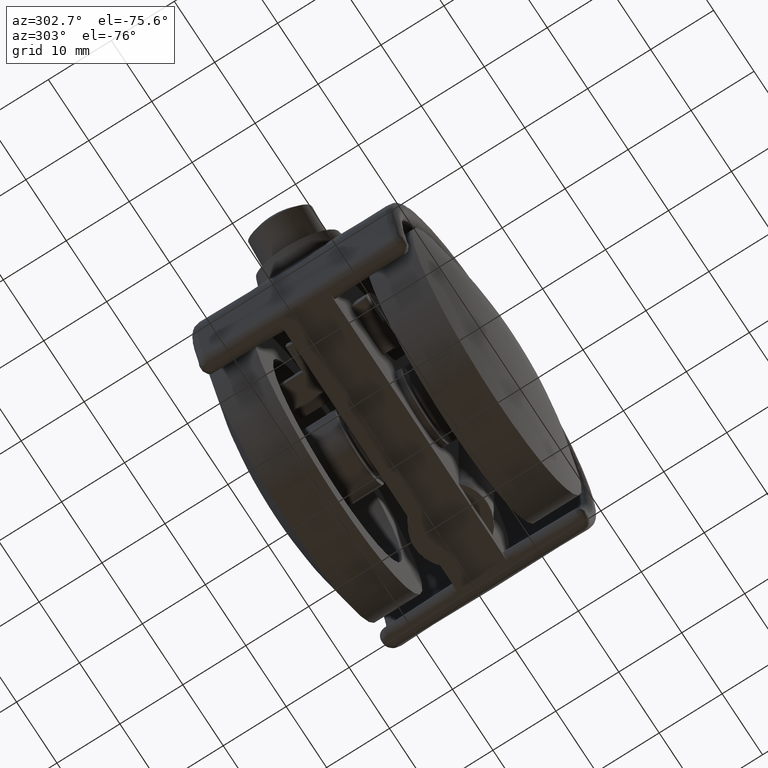
[diagram: clean part render]
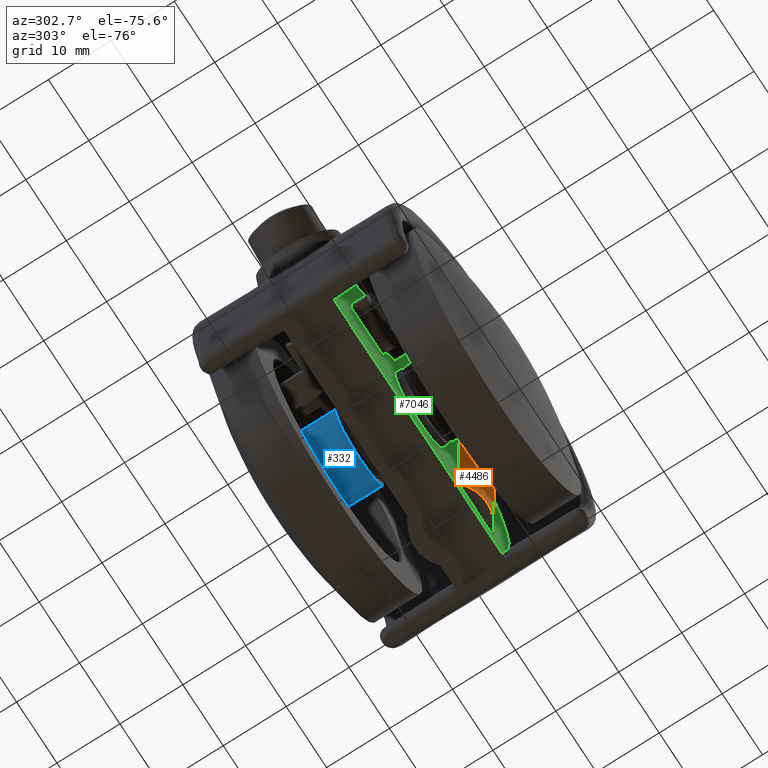
[diagram: same view with three faces highlighted in distinct colors, each labeled with its STEP entity id]
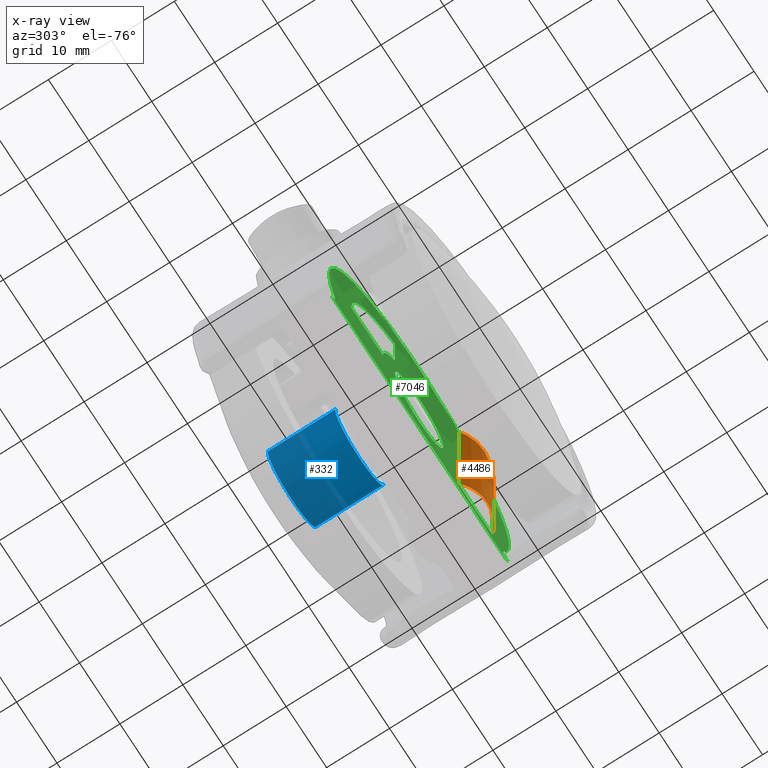
[diagram: x-ray of the same camera — body ghosted, the three highlighted faces saturated]
A machine part, auxiliary view with three faces highlighted in distinct colors.
The next image is the same camera in x-ray (body ghosted, the three faces saturated) — at least one of them is partly hidden behind the body in this view.
Their STEP definitions:

[orange] entity #4486 — the highlighted face is a freeform B-spline surface patch.
#4385=CARTESIAN_POINT('',(18.218409997675501,-3.950000000000000,-7.700000000000000));
#4386=VERTEX_POINT('',#4385);
#4387=CARTESIAN_POINT('',(9.781586002324699,-3.950000000000000,-7.700000000000000));
#4388=VERTEX_POINT('',#4387);
#4389=CARTESIAN_POINT('',(18.218409997675501,-3.949999999999995,-7.700000000000000));
#4390=CARTESIAN_POINT('',(16.505733487008943,-5.779056997653830,-7.700000000000000));
#4391=CARTESIAN_POINT('',(13.999998000000099,-5.779056997653830,-7.700000000000000));
#4392=CARTESIAN_POINT('',(11.494262512991259,-5.779056997653830,-7.700000000000000));
#4393=CARTESIAN_POINT('',(9.781586002324705,-3.949999999999998,-7.700000000000000));
#4401=(BOUNDED_CURVE()B_SPLINE_CURVE(2,(#4389,#4390,#4391,#4392,#4393),.UNSPECIFIED.,.F.,.U.)B_SPLINE_CURVE_WITH_KNOTS((3,2,3),(0.0,0.500000000000000,1.0),.UNSPECIFIED.)CURVE()GEOMETRIC_REPRESENTATION_ITEM()RATIONAL_B_SPLINE_CURVE((1.0,0.917470031212306,1.0,0.917470031212306,1.0))REPRESENTATION_ITEM(''));
#4402=EDGE_CURVE('',#4386,#4388,#4401,.T.);
#4412=CARTESIAN_POINT('',(9.663866144092207,-3.820400543177698,20.750148874514771));
#4413=CARTESIAN_POINT('',(9.663866144092207,-3.820400543177698,-8.411253721862870));
#4414=CARTESIAN_POINT('',(14.189182435240154,-8.956607573392454,20.750148874514768));
#4415=CARTESIAN_POINT('',(14.189182435240154,-8.956607573392454,-8.411253721862870));
#4416=CARTESIAN_POINT('',(18.493581986934625,-3.633896357148525,20.750148874514760));
#4417=CARTESIAN_POINT('',(18.493581986934625,-3.633896357148525,-8.411253721862872));
#4425=(BOUNDED_SURFACE()B_SPLINE_SURFACE(1,2,((#4412,#4414,#4416),(#4413,#4415,#4417)),.UNSPECIFIED.,.F.,.F.,.U.)B_SPLINE_SURFACE_WITH_KNOTS((2,2),(3,3),(0.0,29.161402596377641),(0.0,10.737053788706771),.UNSPECIFIED.)GEOMETRIC_REPRESENTATION_ITEM()RATIONAL_B_SPLINE_SURFACE(((1.0,0.644185557221352,0.997215046641038),(1.0,0.644185557221352,0.997215046641038)))REPRESENTATION_ITEM('')SURFACE());
#4426=ORIENTED_EDGE('',*,*,#4402,.F.);
#4427=CARTESIAN_POINT('',(18.218409997675501,-3.950000000000000,12.884946150710441));
#4428=VERTEX_POINT('',#4427);
#4429=CARTESIAN_POINT('',(18.218409997675501,-3.950000000000000,-7.700000000000000));
#4430=CARTESIAN_POINT('',(18.218409997675501,-3.950000000000000,12.884946150710441));
#4431=QUASI_UNIFORM_CURVE('',1,(#4429,#4430),.UNSPECIFIED.,.F.,.U.);
#4432=EDGE_CURVE('',#4386,#4428,#4431,.T.);
#4433=ORIENTED_EDGE('',*,*,#4432,.T.);
#4434=CARTESIAN_POINT('',(9.781586002324691,-3.950000000000000,20.056242804404651));
#4435=VERTEX_POINT('',#4434);
#4436=CARTESIAN_POINT('',(18.218409997675501,-3.950000000000000,12.884946150710441));
#4437=CARTESIAN_POINT('',(18.095325375746029,-4.081448517943434,13.060638259808639));
#4438=CARTESIAN_POINT('',(17.967976303829239,-4.205189627295789,13.236984185550790));
#4439=CARTESIAN_POINT('',(17.704741673835031,-4.438845112453796,13.590114484383600));
#4440=CARTESIAN_POINT('',(17.568854780624701,-4.548748820573049,13.766903547391840));
#4441=CARTESIAN_POINT('',(17.148100927771431,-4.858844185900796,14.297078445103031));
#4442=CARTESIAN_POINT('',(16.850222675408471,-5.039652371708762,14.650213629687160));
#4443=CARTESIAN_POINT('',(16.374748775967110,-5.271541783068497,15.177534355638260));
#4444=CARTESIAN_POINT('',(16.211461853787419,-5.342223455374145,15.352927870577300));
#4445=CARTESIAN_POINT('',(15.958803105335150,-5.437709844396952,15.615338319353080));
#4446=CARTESIAN_POINT('',(15.873224571795930,-5.467791928931600,15.702759526324909));
#4447=CARTESIAN_POINT('',(15.700713595557870,-5.523883853811384,15.876048242333679));
#4448=CARTESIAN_POINT('',(15.613630432539360,-5.549954869024083,15.962075028816409));
#4449=CARTESIAN_POINT('',(15.174035031521059,-5.670280339223917,16.389099302257321));
#4450=CARTESIAN_POINT('',(14.809027556190181,-5.734767290349589,16.720765862400739));
#4451=CARTESIAN_POINT('',(14.240242586720189,-5.777190368116985,17.202953408613400));
#4452=CARTESIAN_POINT('',(14.047093744599820,-5.782219900093316,17.361130836573441));
#4453=CARTESIAN_POINT('',(13.751783598429119,-5.774563679881005,17.594524224713460));
#4454=CARTESIAN_POINT('',(13.652167720252310,-5.769449938941716,17.671863380524929));
#4455=CARTESIAN_POINT('',(13.452383178006921,-5.753925313053462,17.824209788719099));
#4456=CARTESIAN_POINT('',(13.352292355196120,-5.743535574461320,17.899165944445269));
#4457=CARTESIAN_POINT('',(13.051506580985800,-5.704275472951484,18.120429518812969));
#4458=CARTESIAN_POINT('',(12.850294673682370,-5.667335681519781,18.263134306817559));
#4459=CARTESIAN_POINT('',(12.447008896959529,-5.570344362013052,18.539126493403391));
#4460=CARTESIAN_POINT('',(12.244933075241960,-5.510301302968386,18.672414039789011));
#4461=CARTESIAN_POINT('',(11.941661099358550,-5.401138062941823,18.865370046437530));
#4462=CARTESIAN_POINT('',(11.840545327524881,-5.361560341566401,18.928525574243960));
#4463=CARTESIAN_POINT('',(11.688909697250470,-5.297111191840521,19.021519289350891));
#4464=CARTESIAN_POINT('',(11.638342658240740,-5.274764444126882,19.052243287294878));
#4465=CARTESIAN_POINT('',(11.537867905863830,-5.228620400625216,19.112734847637579));
#4466=CARTESIAN_POINT('',(11.487883484672979,-5.204791791229993,19.142549882016169));
#4467=CARTESIAN_POINT('',(11.239264831374189,-5.081838888673095,19.289509646649091));
#4468=CARTESIAN_POINT('',(11.044526607111230,-4.971315077274169,19.400317482970308));
#4469=CARTESIAN_POINT('',(10.664568560967300,-4.724795784893917,19.609243188727479));
#4470=CARTESIAN_POINT('',(10.479342634399149,-4.588810252136822,19.707361699288370));
#4471=CARTESIAN_POINT('',(10.209881850923150,-4.364194409793074,19.845461990125170));
#4472=CARTESIAN_POINT('',(10.121266841742040,-4.285685037187996,19.890076393136209));
#4473=CARTESIAN_POINT('',(9.948186156298535,-4.122435253495045,19.975791730417441));
#4474=CARTESIAN_POINT('',(9.863772392525339,-4.037771153029901,20.016871563630389));
#4475=CARTESIAN_POINT('',(9.781586002324691,-3.950000000000000,20.056242804404651));
#4476=B_SPLINE_CURVE_WITH_KNOTS('',3,(#4436,#4437,#4438,#4439,#4440,#4441,#4442,#4443,#4444,#4445,#4446,#4447,#4448,#4449,#4450,#4451,#4452,#4453,#4454,#4455,#4456,#4457,#4458,#4459,#4460,#4461,#4462,#4463,#4464,#4465,#4466,#4467,#4468,#4469,#4470,#4471,#4472,#4473,#4474,#4475),.UNSPECIFIED.,.F.,.U.,(4,2,2,2,2,2,2,2,2,2,2,2,2,2,2,2,2,2,2,4),(0.0,0.062500000000001,0.125000000000002,0.250000000000003,0.312500000000004,0.343750000000004,0.375000000000004,0.500000000000003,0.562500000000003,0.593750000000003,0.625000000000003,0.687500000000003,0.750000000000003,0.781250000000003,0.796875000000003,0.812500000000003,0.875000000000002,0.937500000000001,0.968750000000001,1.0),.UNSPECIFIED.);
#4477=EDGE_CURVE('',#4428,#4435,#4476,.T.);
#4478=ORIENTED_EDGE('',*,*,#4477,.T.);
#4479=CARTESIAN_POINT('',(9.781586002324691,-3.950000000000000,20.056242804404651));
#4480=CARTESIAN_POINT('',(9.781586002324699,-3.950000000000000,-7.700000000000000));
#4481=QUASI_UNIFORM_CURVE('',1,(#4479,#4480),.UNSPECIFIED.,.F.,.U.);
#4482=EDGE_CURVE('',#4435,#4388,#4481,.T.);
#4483=ORIENTED_EDGE('',*,*,#4482,.T.);
#4484=EDGE_LOOP('',(#4426,#4433,#4478,#4483));
#4485=FACE_OUTER_BOUND('',#4484,.T.);
#4486=ADVANCED_FACE('',(#4485),#4425,.T.);

[blue] entity #332 — the highlighted face is a freeform B-spline surface patch.
#230=CARTESIAN_POINT('',(5.958057158181998,-16.501150062613323,0.708205407940551));
#231=CARTESIAN_POINT('',(5.978325692691634,-16.501150062613323,0.537688371827866));
#232=CARTESIAN_POINT('',(5.988808790531200,-16.501150062613320,0.366291237209142));
#233=CARTESIAN_POINT('',(6.355100027740342,-16.501150062613316,-5.622517553322059));
#234=CARTESIAN_POINT('',(0.366291237209142,-16.501150062613320,-5.988808790531200));
#235=CARTESIAN_POINT('',(-5.622517553322059,-16.501150062613316,-6.355100027740342));
#236=CARTESIAN_POINT('',(-5.988808790531200,-16.501150062613320,-0.366291237209142));
#237=CARTESIAN_POINT('',(5.958057158181998,-5.224971248434668,0.708205407940551));
#238=CARTESIAN_POINT('',(5.978325692691634,-5.224971248434668,0.537688371827866));
#239=CARTESIAN_POINT('',(5.988808790531200,-5.224971248434667,0.366291237209142));
#240=CARTESIAN_POINT('',(6.355100027740342,-5.224971248434667,-5.622517553322059));
#241=CARTESIAN_POINT('',(0.366291237209142,-5.224971248434667,-5.988808790531200));
#242=CARTESIAN_POINT('',(-5.622517553322059,-5.224971248434667,-6.355100027740342));
#243=CARTESIAN_POINT('',(-5.988808790531200,-5.224971248434667,-0.366291237209142));
#251=(BOUNDED_SURFACE()B_SPLINE_SURFACE(2,1,((#230,#237),(#231,#238),(#232,#239),(#233,#240),(#234,#241),(#235,#242),(#236,#243)),.UNSPECIFIED.,.F.,.F.,.U.)B_SPLINE_SURFACE_WITH_KNOTS((3,2,2,3),(2,2),(0.0,0.397645019878172,10.338770516832451,20.279896013786729),(0.0,11.276178814178660),.UNSPECIFIED.)GEOMETRIC_REPRESENTATION_ITEM()RATIONAL_B_SPLINE_SURFACE(((0.977505800795127,0.977505800795127),(0.988284271247462,0.988284271247462),(1.0,1.0),(0.707106781186548,0.707106781186548),(1.0,1.0),(0.707106781186548,0.707106781186548),(1.0,1.0)))REPRESENTATION_ITEM('')SURFACE());
#252=CARTESIAN_POINT('',(5.958057158173149,-5.500000000000000,0.708205408014996));
#253=VERTEX_POINT('',#252);
#254=CARTESIAN_POINT('',(0.0,-5.500000000000000,-6.0));
#255=VERTEX_POINT('',#254);
#256=CARTESIAN_POINT('',(5.958057158173149,-5.500000000000001,0.708205408014996));
#257=CARTESIAN_POINT('',(6.000000000000001,-5.500000000000000,0.355344717986694));
#258=CARTESIAN_POINT('',(6.0,-5.500000000000000,0.0));
#259=CARTESIAN_POINT('',(6.0,-5.500000000000001,-6.0));
#260=CARTESIAN_POINT('',(0.0,-5.500000000000000,-6.0));
#268=(BOUNDED_CURVE()B_SPLINE_CURVE(2,(#256,#257,#258,#259,#260),.UNSPECIFIED.,.F.,.U.)B_SPLINE_CURVE_WITH_KNOTS((3,2,3),(0.229562473511421,0.250000000000000,0.500000000000000),.UNSPECIFIED.)CURVE()GEOMETRIC_REPRESENTATION_ITEM()RATIONAL_B_SPLINE_CURVE((0.956026754179608,0.976055948328699,1.0,0.707106781186548,1.0))REPRESENTATION_ITEM(''));
#269=EDGE_CURVE('',#253,#255,#268,.T.);
#270=ORIENTED_EDGE('',*,*,#269,.F.);
#271=CARTESIAN_POINT('',(5.958057158173149,-16.232829329378848,0.708205408014997));
#272=VERTEX_POINT('',#271);
#273=CARTESIAN_POINT('',(5.958057158173149,-16.232829329378848,0.708205408014997));
#274=CARTESIAN_POINT('',(5.958057158173149,-5.500000000000000,0.708205408014996));
#275=QUASI_UNIFORM_CURVE('',1,(#273,#274),.UNSPECIFIED.,.F.,.U.);
#276=EDGE_CURVE('',#272,#253,#275,.T.);
#277=ORIENTED_EDGE('',*,*,#276,.F.);
#278=CARTESIAN_POINT('',(0.0,-16.232829329378848,-6.0));
#279=VERTEX_POINT('',#278);
#280=CARTESIAN_POINT('',(5.958057158173149,-16.232829329378852,0.708205408014997));
#281=CARTESIAN_POINT('',(6.0,-16.232829329378852,0.355344717986694));
#282=CARTESIAN_POINT('',(6.0,-16.232829329378848,0.0));
#283=CARTESIAN_POINT('',(6.0,-16.232829329378845,-6.0));
#284=CARTESIAN_POINT('',(0.0,-16.232829329378848,-6.0));
#292=(BOUNDED_CURVE()B_SPLINE_CURVE(2,(#280,#281,#282,#283,#284),.UNSPECIFIED.,.F.,.U.)B_SPLINE_CURVE_WITH_KNOTS((3,2,3),(0.229562473511421,0.250000000000000,0.500000000000000),.UNSPECIFIED.)CURVE()GEOMETRIC_REPRESENTATION_ITEM()RATIONAL_B_SPLINE_CURVE((0.956026754179608,0.976055948328699,1.0,0.707106781186548,1.0))REPRESENTATION_ITEM(''));
#293=EDGE_CURVE('',#272,#279,#292,.T.);
#294=ORIENTED_EDGE('',*,*,#293,.T.);
#295=CARTESIAN_POINT('',(-5.988809225545692,-16.232829329378848,-0.366284124646463));
#296=VERTEX_POINT('',#295);
#297=CARTESIAN_POINT('',(0.0,-16.232829329378848,-6.0));
#298=CARTESIAN_POINT('',(-5.644243117297799,-16.232829329378852,-6.000000000000002));
#299=CARTESIAN_POINT('',(-5.988809225545692,-16.232829329378845,-0.366284124646463));
#307=(BOUNDED_CURVE()B_SPLINE_CURVE(2,(#297,#298,#299),.UNSPECIFIED.,.F.,.U.)B_SPLINE_CURVE_WITH_KNOTS((3,3),(0.500000000000000,0.739333167165867),.UNSPECIFIED.)CURVE()GEOMETRIC_REPRESENTATION_ITEM()RATIONAL_B_SPLINE_CURVE((1.0,0.719603753199885,0.976072480864519))REPRESENTATION_ITEM(''));
#308=EDGE_CURVE('',#279,#296,#307,.T.);
#309=ORIENTED_EDGE('',*,*,#308,.T.);
#310=CARTESIAN_POINT('',(-5.988809230990668,-5.499999999999938,-0.366284035618390));
#311=VERTEX_POINT('',#310);
#312=CARTESIAN_POINT('',(-5.988809225545692,-16.232829329378848,-0.366284124646463));
#313=CARTESIAN_POINT('',(-5.988809230990668,-5.499999999999938,-0.366284035618390));
#314=QUASI_UNIFORM_CURVE('',1,(#312,#313),.UNSPECIFIED.,.F.,.U.);
#315=EDGE_CURVE('',#296,#311,#314,.T.);
#316=ORIENTED_EDGE('',*,*,#315,.T.);
#317=CARTESIAN_POINT('',(0.0,-5.500000000000000,-6.0));
#318=CARTESIAN_POINT('',(-5.644243201360425,-5.499999999999999,-6.0));
#319=CARTESIAN_POINT('',(-5.988809230990668,-5.499999999999938,-0.366284035618390));
#327=(BOUNDED_CURVE()B_SPLINE_CURVE(2,(#317,#318,#319),.UNSPECIFIED.,.F.,.U.)B_SPLINE_CURVE_WITH_KNOTS((3,3),(0.500000000000000,0.739333169730903),.UNSPECIFIED.)CURVE()GEOMETRIC_REPRESENTATION_ITEM()RATIONAL_B_SPLINE_CURVE((1.0,0.719603750194758,0.976072486361890))REPRESENTATION_ITEM(''));
#328=EDGE_CURVE('',#255,#311,#327,.T.);
#329=ORIENTED_EDGE('',*,*,#328,.F.);
#330=EDGE_LOOP('',(#270,#277,#294,#309,#316,#329));
#331=FACE_OUTER_BOUND('',#330,.T.);
#332=ADVANCED_FACE('',(#331),#251,.T.);

[green] entity #7046 — the highlighted face is a freeform B-spline surface patch.
#2461=CARTESIAN_POINT('',(-5.999771538384367,-3.950000000000000,0.052359213065836));
#2462=VERTEX_POINT('',#2461);
#2468=CARTESIAN_POINT('',(0.0,-3.950000000000000,-6.0));
#2469=VERTEX_POINT('',#2468);
#2470=CARTESIAN_POINT('',(-5.999771538384367,-3.950000000000001,0.052359213065836));
#2471=CARTESIAN_POINT('',(-6.0,-3.950000000000001,0.026180104999806));
#2472=CARTESIAN_POINT('',(-6.0,-3.950000000000000,0.0));
#2473=CARTESIAN_POINT('',(-6.0,-3.950000000000000,-6.0));
#2474=CARTESIAN_POINT('',(0.0,-3.950000000000000,-6.0));
#2482=(BOUNDED_CURVE()B_SPLINE_CURVE(2,(#2470,#2471,#2472,#2473,#2474),.UNSPECIFIED.,.F.,.U.)B_SPLINE_CURVE_WITH_KNOTS((3,2,3),(0.248460105660574,0.250000000000000,0.500000000000000),.UNSPECIFIED.)CURVE()GEOMETRIC_REPRESENTATION_ITEM()RATIONAL_B_SPLINE_CURVE((0.996414028090134,0.998195901561172,1.0,0.707106781186548,1.0))REPRESENTATION_ITEM(''));
#2483=EDGE_CURVE('',#2462,#2469,#2482,.T.);
#2485=CARTESIAN_POINT('',(5.953598311221780,-3.950000000000000,-0.744759792516037));
#2486=VERTEX_POINT('',#2485);
#2487=CARTESIAN_POINT('',(0.0,-3.950000000000000,-6.0));
#2488=CARTESIAN_POINT('',(5.296198970198693,-3.950000000000000,-6.000000000000001));
#2489=CARTESIAN_POINT('',(5.953598311221780,-3.950000000000000,-0.744759792516037));
#2497=(BOUNDED_CURVE()B_SPLINE_CURVE(2,(#2487,#2488,#2489),.UNSPECIFIED.,.F.,.U.)B_SPLINE_CURVE_WITH_KNOTS((3,3),(0.500000000000000,0.728526303873963),.UNSPECIFIED.)CURVE()GEOMETRIC_REPRESENTATION_ITEM()RATIONAL_B_SPLINE_CURVE((1.0,0.732264781099255,0.954005882136699))REPRESENTATION_ITEM(''));
#2498=EDGE_CURVE('',#2469,#2486,#2497,.T.);
#2548=CARTESIAN_POINT('',(0.0,-3.950000000000000,6.0));
#2549=VERTEX_POINT('',#2548);
#2550=CARTESIAN_POINT('',(5.953598311221780,-3.950000000000000,-0.744759792516037));
#2551=CARTESIAN_POINT('',(5.999999999999999,-3.950000000000000,-0.373825407108031));
#2552=CARTESIAN_POINT('',(6.0,-3.950000000000000,0.0));
#2553=CARTESIAN_POINT('',(6.0,-3.950000000000000,6.0));
#2554=CARTESIAN_POINT('',(0.0,-3.950000000000000,6.0));
#2562=(BOUNDED_CURVE()B_SPLINE_CURVE(2,(#2550,#2551,#2552,#2553,#2554),.UNSPECIFIED.,.F.,.U.)B_SPLINE_CURVE_WITH_KNOTS((3,2,3),(0.728526303873963,0.750000000000000,1.0),.UNSPECIFIED.)CURVE()GEOMETRIC_REPRESENTATION_ITEM()RATIONAL_B_SPLINE_CURVE((0.954005882136699,0.974842000087292,1.0,0.707106781186548,1.0))REPRESENTATION_ITEM(''));
#2563=EDGE_CURVE('',#2486,#2549,#2562,.T.);
#2565=CARTESIAN_POINT('',(0.0,-3.950000000000000,6.0));
#2566=CARTESIAN_POINT('',(-5.947867263419989,-3.950000000000000,6.000000000000002));
#2567=CARTESIAN_POINT('',(-5.999771538384367,-3.950000000000000,0.052359213065836));
#2575=(BOUNDED_CURVE()B_SPLINE_CURVE(2,(#2565,#2566,#2567),.UNSPECIFIED.,.F.,.U.)B_SPLINE_CURVE_WITH_KNOTS((3,3),(0.0,0.248460105660574),.UNSPECIFIED.)CURVE()GEOMETRIC_REPRESENTATION_ITEM()RATIONAL_B_SPLINE_CURVE((1.0,0.708910879625375,0.996414028090134))REPRESENTATION_ITEM(''));
#2576=EDGE_CURVE('',#2549,#2462,#2575,.T.);
#3656=CARTESIAN_POINT('',(-9.000002000000000,-3.950000000000000,0.0));
#3657=VERTEX_POINT('',#3656);
#3665=CARTESIAN_POINT('',(-6.0,-3.950000000000000,6.708206615780580));
#3666=VERTEX_POINT('',#3665);
#3667=CARTESIAN_POINT('',(-9.000001999999997,-3.950000000000000,0.0));
#3668=CARTESIAN_POINT('',(-9.000001999999999,-3.950000000000000,4.024924327239345));
#3669=CARTESIAN_POINT('',(-6.0,-3.950000000000000,6.708206615780580));
#3677=(BOUNDED_CURVE()B_SPLINE_CURVE(2,(#3667,#3668,#3669),.UNSPECIFIED.,.F.,.U.)CURVE()GEOMETRIC_REPRESENTATION_ITEM()QUASI_UNIFORM_CURVE()RATIONAL_B_SPLINE_CURVE((1.0,0.912870888603246,1.0))REPRESENTATION_ITEM(''));
#3678=EDGE_CURVE('',#3657,#3666,#3677,.T.);
#3969=CARTESIAN_POINT('',(-16.854497999999900,-3.950000000000000,0.0));
#3970=VERTEX_POINT('',#3969);
#3971=CARTESIAN_POINT('',(-9.000002000000000,-3.950000000000000,0.0));
#3972=CARTESIAN_POINT('',(-16.854497999999900,-3.950000000000000,0.0));
#3973=QUASI_UNIFORM_CURVE('',1,(#3971,#3972),.UNSPECIFIED.,.F.,.U.);
#3974=EDGE_CURVE('',#3657,#3970,#3973,.T.);
#4005=CARTESIAN_POINT('',(-6.0,-3.950000000000000,15.750368339565901));
#4006=VERTEX_POINT('',#4005);
#4012=CARTESIAN_POINT('',(-16.854497999999900,-3.950000000000000,0.0));
#4013=CARTESIAN_POINT('',(-16.854497999999907,-3.949999999999999,11.615418185010085));
#4014=CARTESIAN_POINT('',(-6.000000000000005,-3.950000000000000,15.750368339565920));
#4022=(BOUNDED_CURVE()B_SPLINE_CURVE(2,(#4012,#4013,#4014),.UNSPECIFIED.,.F.,.U.)CURVE()GEOMETRIC_REPRESENTATION_ITEM()QUASI_UNIFORM_CURVE()RATIONAL_B_SPLINE_CURVE((1.0,0.823403928006375,1.0))REPRESENTATION_ITEM(''));
#4023=EDGE_CURVE('',#3970,#4006,#4022,.T.);
#4033=CARTESIAN_POINT('',(-6.0,-3.950000000000000,15.750368339565901));
#4034=CARTESIAN_POINT('',(-6.0,-3.950000000000000,6.708206615780580));
#4035=QUASI_UNIFORM_CURVE('',1,(#4033,#4034),.UNSPECIFIED.,.F.,.U.);
#4036=EDGE_CURVE('',#4006,#3666,#4035,.T.);
#4385=CARTESIAN_POINT('',(18.218409997675501,-3.950000000000000,-7.700000000000000));
#4386=VERTEX_POINT('',#4385);
#4387=CARTESIAN_POINT('',(9.781586002324699,-3.950000000000000,-7.700000000000000));
#4388=VERTEX_POINT('',#4387);
#4404=CARTESIAN_POINT('',(9.781586002324699,-3.950000000000000,-7.700000000000000));
#4405=CARTESIAN_POINT('',(18.218409997675501,-3.950000000000000,-7.700000000000000));
#4406=QUASI_UNIFORM_CURVE('',1,(#4404,#4405),.UNSPECIFIED.,.F.,.U.);
#4407=EDGE_CURVE('',#4388,#4386,#4406,.T.);
#4427=CARTESIAN_POINT('',(18.218409997675501,-3.950000000000000,12.884946150710441));
#4428=VERTEX_POINT('',#4427);
#4429=CARTESIAN_POINT('',(18.218409997675501,-3.950000000000000,-7.700000000000000));
#4430=CARTESIAN_POINT('',(18.218409997675501,-3.950000000000000,12.884946150710441));
#4431=QUASI_UNIFORM_CURVE('',1,(#4429,#4430),.UNSPECIFIED.,.F.,.U.);
#4432=EDGE_CURVE('',#4386,#4428,#4431,.T.);
#4434=CARTESIAN_POINT('',(9.781586002324691,-3.950000000000000,20.056242804404651));
#4435=VERTEX_POINT('',#4434);
#4479=CARTESIAN_POINT('',(9.781586002324691,-3.950000000000000,20.056242804404651));
#4480=CARTESIAN_POINT('',(9.781586002324699,-3.950000000000000,-7.700000000000000));
#4481=QUASI_UNIFORM_CURVE('',1,(#4479,#4480),.UNSPECIFIED.,.F.,.U.);
#4482=EDGE_CURVE('',#4435,#4388,#4481,.T.);
#4507=CARTESIAN_POINT('',(-20.854905771677899,-3.950000000000000,-7.937581836084940));
#4508=VERTEX_POINT('',#4507);
#4509=CARTESIAN_POINT('',(-22.069919937677799,-3.950000000000000,-9.700000000000001));
#4510=VERTEX_POINT('',#4509);
#4511=CARTESIAN_POINT('',(-20.854905771677899,-3.950000000000000,-7.937581836084940));
#4512=CARTESIAN_POINT('',(-20.817295773708398,-3.950000000000001,-8.036396938709631));
#4513=CARTESIAN_POINT('',(-20.792334314585890,-3.950000000000001,-8.137710196464562));
#4514=CARTESIAN_POINT('',(-20.773213468999860,-3.950000000000000,-8.293298647881807));
#4515=CARTESIAN_POINT('',(-20.769931934246049,-3.950000000000000,-8.346085964838826));
#4516=CARTESIAN_POINT('',(-20.769829931945878,-3.950000000000000,-8.451395772120284));
#4517=CARTESIAN_POINT('',(-20.776103089783859,-3.950000000000000,-8.555791741479185));
#4518=CARTESIAN_POINT('',(-20.794748076146000,-3.950000000000000,-8.658414289334683));
#4519=CARTESIAN_POINT('',(-20.819664711924538,-3.950000000000001,-8.760137836859300));
#4520=CARTESIAN_POINT('',(-20.835401237760390,-3.950000000000001,-8.810865724995365));
#4521=CARTESIAN_POINT('',(-20.891106823224650,-3.950000000000000,-8.958122784784607));
#4522=CARTESIAN_POINT('',(-20.939435639778299,-3.950000000000000,-9.050471301139687));
#4523=CARTESIAN_POINT('',(-21.028746354318599,-3.950000000000000,-9.180244259857124));
#4524=CARTESIAN_POINT('',(-21.061449574395841,-3.950000000000000,-9.222063876477174));
#4525=CARTESIAN_POINT('',(-21.130803722905160,-3.950000000000000,-9.300474317628190));
#4526=CARTESIAN_POINT('',(-21.204487483568752,-3.950000000000000,-9.374271534434227));
#4527=CARTESIAN_POINT('',(-21.286726920013081,-3.950000000000001,-9.438952634047043));
#4528=CARTESIAN_POINT('',(-21.373382974066971,-3.949999999999999,-9.498927804548201));
#4529=CARTESIAN_POINT('',(-21.418568247812299,-3.950000000000000,-9.526274933120549));
#4530=CARTESIAN_POINT('',(-21.557263548188288,-3.949999999999999,-9.599213454397482));
#4531=CARTESIAN_POINT('',(-21.654901682674112,-3.950000000000000,-9.636501173925426));
#4532=CARTESIAN_POINT('',(-21.860040935317489,-3.950000000000000,-9.687291064356096));
#4533=CARTESIAN_POINT('',(-21.964189527046209,-3.950000000000000,-9.700000000000001));
#4534=CARTESIAN_POINT('',(-22.069919937677799,-3.950000000000000,-9.700000000000001));
#4535=B_SPLINE_CURVE_WITH_KNOTS('',3,(#4511,#4512,#4513,#4514,#4515,#4516,#4517,#4518,#4519,#4520,#4521,#4522,#4523,#4524,#4525,#4526,#4527,#4528,#4529,#4530,#4531,#4532,#4533,#4534),.UNSPECIFIED.,.F.,.U.,(4,2,2,1,2,2,2,2,1,2,2,2,4),(0.0,0.124999999999998,0.187499999999997,0.249999999999996,0.312499999999995,0.374999999999994,0.499999999999993,0.562499999999993,0.624999999999993,0.687499999999993,0.749999999999992,0.874999999999996,1.0),.UNSPECIFIED.);
#4536=EDGE_CURVE('',#4508,#4510,#4535,.T.);
#4966=CARTESIAN_POINT('',(22.069919937677749,-3.950000000000000,-9.700000000000001));
#4967=VERTEX_POINT('',#4966);
#4987=CARTESIAN_POINT('',(20.854905771677949,-3.950000000000000,-7.937581836084870));
#4988=VERTEX_POINT('',#4987);
#4996=CARTESIAN_POINT('',(22.069919937677749,-3.950000000000000,-9.700000000000001));
#4997=CARTESIAN_POINT('',(21.964189485856039,-3.950000000000002,-9.699999999999994));
#4998=CARTESIAN_POINT('',(21.860623377240319,-3.950000000000000,-9.687291132029875));
#4999=CARTESIAN_POINT('',(21.708409226372989,-3.950000000000000,-9.649819264281152));
#5000=CARTESIAN_POINT('',(21.657907187093240,-3.950000000000000,-9.634110315934954));
#5001=CARTESIAN_POINT('',(21.559447446508081,-3.950000000000000,-9.596748159057006));
#5002=CARTESIAN_POINT('',(21.464109125605120,-3.950000000000000,-9.553753594498181));
#5003=CARTESIAN_POINT('',(21.374829044694799,-3.950000000000000,-9.499827312662692));
#5004=CARTESIAN_POINT('',(21.288619686295149,-3.950000000000001,-9.440360103039192));
#5005=CARTESIAN_POINT('',(21.246805912528089,-3.950000000000000,-9.407610423918394));
#5006=CARTESIAN_POINT('',(21.128989342947111,-3.950000000000001,-9.303172273270636));
#5007=CARTESIAN_POINT('',(21.059867963442489,-3.950000000000000,-9.225158624466296));
#5008=CARTESIAN_POINT('',(20.970345403814619,-3.950000000000000,-9.095533565788639));
#5009=CARTESIAN_POINT('',(20.942891122368721,-3.950000000000000,-9.050094636246598));
#5010=CARTESIAN_POINT('',(20.894273904886450,-3.950000000000000,-8.957386947213342));
#5011=CARTESIAN_POINT('',(20.851508605789249,-3.950000000000000,-8.862273887573375));
#5012=CARTESIAN_POINT('',(20.820307057435581,-3.950000000000000,-8.762407667634220));
#5013=CARTESIAN_POINT('',(20.795074894162909,-3.950000000000000,-8.660087793616318));
#5014=CARTESIAN_POINT('',(20.785586917625668,-3.950000000000000,-8.608129145465714));
#5015=CARTESIAN_POINT('',(20.766748790347449,-3.949999999999999,-8.452559804023414));
#5016=CARTESIAN_POINT('',(20.766627949986031,-3.950000000000000,-8.348046547536574));
#5017=CARTESIAN_POINT('',(20.792127006648329,-3.950000000000000,-8.138255112925915));
#5018=CARTESIAN_POINT('',(20.817295756358341,-3.950000000000000,-8.036396984294658));
#5019=CARTESIAN_POINT('',(20.854905771677949,-3.950000000000000,-7.937581836084870));
#5020=B_SPLINE_CURVE_WITH_KNOTS('',3,(#4996,#4997,#4998,#4999,#5000,#5001,#5002,#5003,#5004,#5005,#5006,#5007,#5008,#5009,#5010,#5011,#5012,#5013,#5014,#5015,#5016,#5017,#5018,#5019),.UNSPECIFIED.,.F.,.U.,(4,2,2,1,2,2,2,2,1,2,2,2,4),(0.0,0.125000000000001,0.187500000000001,0.250000000000002,0.312500000000002,0.375000000000003,0.500000000000002,0.562500000000002,0.625000000000001,0.687500000000001,0.750000000000001,0.875000000000000,1.0),.UNSPECIFIED.);
#5021=EDGE_CURVE('',#4967,#4988,#5020,.T.);
#6789=CARTESIAN_POINT('',(22.069919937677749,-3.950000000000000,-9.700000000000001));
#6790=CARTESIAN_POINT('',(-22.069919937677799,-3.950000000000000,-9.700000000000001));
#6791=QUASI_UNIFORM_CURVE('',1,(#6789,#6790),.UNSPECIFIED.,.F.,.U.);
#6792=EDGE_CURVE('',#4967,#4510,#6791,.T.);
#6875=CARTESIAN_POINT('',(18.218409997675469,-3.950000000000000,12.884946150710419));
#6876=CARTESIAN_POINT('',(25.084915861044070,-3.950000000000000,3.176188534878670));
#6877=CARTESIAN_POINT('',(20.854905771677910,-3.950000000000000,-7.937581836084857));
#6885=(BOUNDED_CURVE()B_SPLINE_CURVE(2,(#6875,#6876,#6877),.UNSPECIFIED.,.F.,.U.)CURVE()GEOMETRIC_REPRESENTATION_ITEM()QUASI_UNIFORM_CURVE()RATIONAL_B_SPLINE_CURVE((1.0,0.882508325932486,1.0))REPRESENTATION_ITEM(''));
#6886=EDGE_CURVE('',#4428,#4988,#6885,.T.);
#6891=CARTESIAN_POINT('',(-20.854905771677881,-3.950000000000000,-7.937581836084943));
#6892=CARTESIAN_POINT('',(-26.251112233321788,-3.950000000000000,6.240209285450131));
#6893=CARTESIAN_POINT('',(-15.052181143582070,-3.950000000000000,16.473133975382499));
#6894=CARTESIAN_POINT('',(-3.853250053842356,-3.950000000000000,26.706058665314849));
#6895=CARTESIAN_POINT('',(9.781586002324707,-3.950000000000000,20.056242804404668));
#6903=(BOUNDED_CURVE()B_SPLINE_CURVE(2,(#6891,#6892,#6893,#6894,#6895),.UNSPECIFIED.,.F.,.U.)B_SPLINE_CURVE_WITH_KNOTS((3,2,3),(0.0,0.500000000000000,1.0),.UNSPECIFIED.)CURVE()GEOMETRIC_REPRESENTATION_ITEM()RATIONAL_B_SPLINE_CURVE((1.0,0.826991858864358,1.0,0.826991858864358,1.0))REPRESENTATION_ITEM(''));
#6904=EDGE_CURVE('',#4508,#4435,#6903,.T.);
#7019=CARTESIAN_POINT('',(-24.529764030787700,-3.950000000000000,-11.298801201234310));
#7020=CARTESIAN_POINT('',(-24.529764030787700,-3.950000000000000,23.906835358496959));
#7021=CARTESIAN_POINT('',(24.542697063049481,-3.950000000000000,-11.298801201234310));
#7022=CARTESIAN_POINT('',(24.542697063049481,-3.950000000000000,23.906835358496959));
#7023=B_SPLINE_SURFACE_WITH_KNOTS('',1,1,((#7019,#7021),(#7020,#7022)),.UNSPECIFIED.,.F.,.F.,.U.,(2,2),(2,2),(0.0,35.205636559731268),(0.0,49.072461093837177),.UNSPECIFIED.);
#7024=ORIENTED_EDGE('',*,*,#4432,.F.);
#7025=ORIENTED_EDGE('',*,*,#4407,.F.);
#7026=ORIENTED_EDGE('',*,*,#4482,.F.);
#7027=ORIENTED_EDGE('',*,*,#6904,.F.);
#7028=ORIENTED_EDGE('',*,*,#4536,.T.);
#7029=ORIENTED_EDGE('',*,*,#6792,.F.);
#7030=ORIENTED_EDGE('',*,*,#5021,.T.);
#7031=ORIENTED_EDGE('',*,*,#6886,.F.);
#7032=EDGE_LOOP('',(#7024,#7025,#7026,#7027,#7028,#7029,#7030,#7031));
#7033=FACE_OUTER_BOUND('',#7032,.T.);
#7034=ORIENTED_EDGE('',*,*,#4036,.T.);
#7035=ORIENTED_EDGE('',*,*,#3678,.F.);
#7036=ORIENTED_EDGE('',*,*,#3974,.T.);
#7037=ORIENTED_EDGE('',*,*,#4023,.T.);
#7038=EDGE_LOOP('',(#7034,#7035,#7036,#7037));
#7039=FACE_BOUND('',#7038,.T.);
#7040=ORIENTED_EDGE('',*,*,#2576,.F.);
#7041=ORIENTED_EDGE('',*,*,#2563,.F.);
#7042=ORIENTED_EDGE('',*,*,#2498,.F.);
#7043=ORIENTED_EDGE('',*,*,#2483,.F.);
#7044=EDGE_LOOP('',(#7040,#7041,#7042,#7043));
#7045=FACE_BOUND('',#7044,.T.);
#7046=ADVANCED_FACE('',(#7033,#7039,#7045),#7023,.F.);